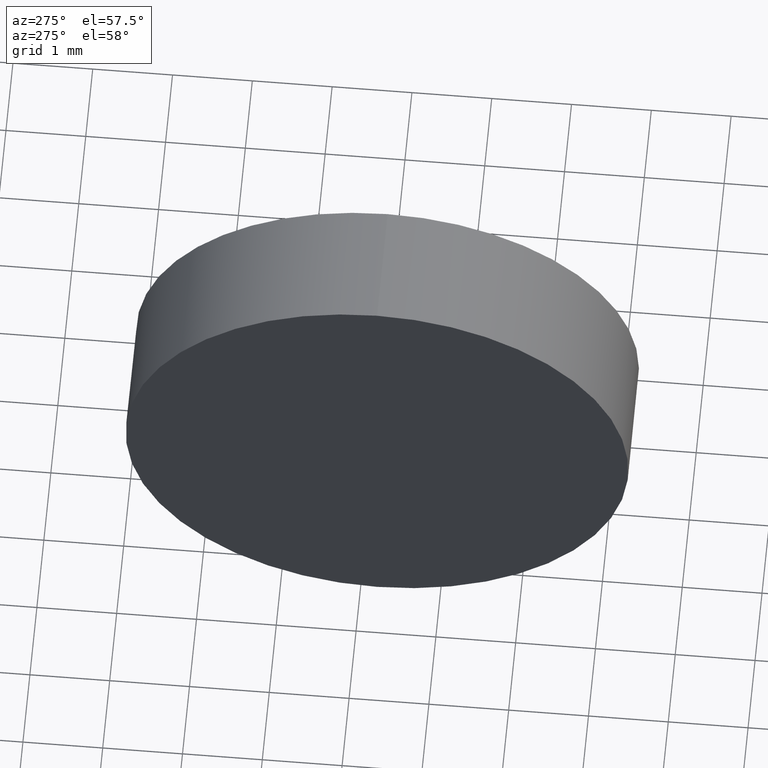
[diagram: clean part render]
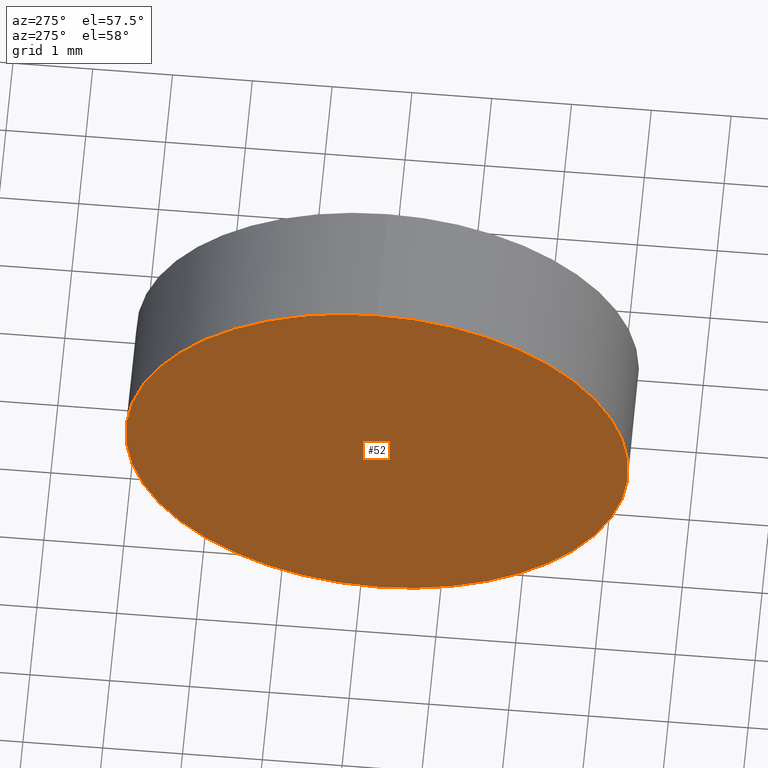
[diagram: same view with one face highlighted and labeled with its STEP entity id]
A machine part, auxiliary view. The second image highlights one B-rep face of the part: STEP entity #52.
In plain terms, the highlighted planar face has unit normal (1, 0, 0).
Its self-contained STEP definition (entity closure, byte-faithful):
#24 = CIRCLE ( 'NONE', #167, 3.149999999999999900 ) ;
#29 = EDGE_LOOP ( 'NONE', ( #90, #107 ) ) ;
#31 = PLANE ( 'NONE',  #50 ) ;
#35 = EDGE_CURVE ( 'NONE', #186, #110, #136, .T. ) ;
#39 = CARTESIAN_POINT ( 'NONE',  ( 497.5865941383895000, 112.7888820155200200, -3.149999999999999900 ) ) ;
#50 = AXIS2_PLACEMENT_3D ( 'NONE', #159, #134, #95 ) ;
#52 = ADVANCED_FACE ( 'NONE', ( #149 ), #31, .F. ) ;
#55 = CARTESIAN_POINT ( 'NONE',  ( 497.5865941383895000, 112.7888820155200200, 3.149999999999999900 ) ) ;
#60 = AXIS2_PLACEMENT_3D ( 'NONE', #97, #109, #122 ) ;
#61 = DIRECTION ( 'NONE',  ( 0.0000000000000000000, 0.0000000000000000000, 1.000000000000000000 ) ) ;
#90 = ORIENTED_EDGE ( 'NONE', *, *, #96, .T. ) ;
#95 = DIRECTION ( 'NONE',  ( 0.0000000000000000000, 0.0000000000000000000, -1.000000000000000000 ) ) ;
#96 = EDGE_CURVE ( 'NONE', #110, #186, #24, .T. ) ;
#97 = CARTESIAN_POINT ( 'NONE',  ( 497.5865941383895000, 112.7888820155200200, 0.0000000000000000000 ) ) ;
#103 = CARTESIAN_POINT ( 'NONE',  ( 497.5865941383895000, 112.7888820155200200, 0.0000000000000000000 ) ) ;
#107 = ORIENTED_EDGE ( 'NONE', *, *, #35, .T. ) ;
#109 = DIRECTION ( 'NONE',  ( -1.000000000000000000, -0.0000000000000000000, -0.0000000000000000000 ) ) ;
#110 = VERTEX_POINT ( 'NONE', #55 ) ;
#122 = DIRECTION ( 'NONE',  ( 0.0000000000000000000, 0.0000000000000000000, 1.000000000000000000 ) ) ;
#134 = DIRECTION ( 'NONE',  ( 1.000000000000000000, 0.0000000000000000000, 0.0000000000000000000 ) ) ;
#136 = CIRCLE ( 'NONE', #60, 3.149999999999999900 ) ;
#142 = DIRECTION ( 'NONE',  ( -1.000000000000000000, -0.0000000000000000000, -0.0000000000000000000 ) ) ;
#149 = FACE_OUTER_BOUND ( 'NONE', #29, .T. ) ;
#159 = CARTESIAN_POINT ( 'NONE',  ( 497.5865941383895000, 112.7888820155200200, 0.0000000000000000000 ) ) ;
#167 = AXIS2_PLACEMENT_3D ( 'NONE', #103, #142, #61 ) ;
#186 = VERTEX_POINT ( 'NONE', #39 ) ;